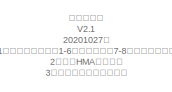
[diagram: root canvas - part 1/2, top left region]
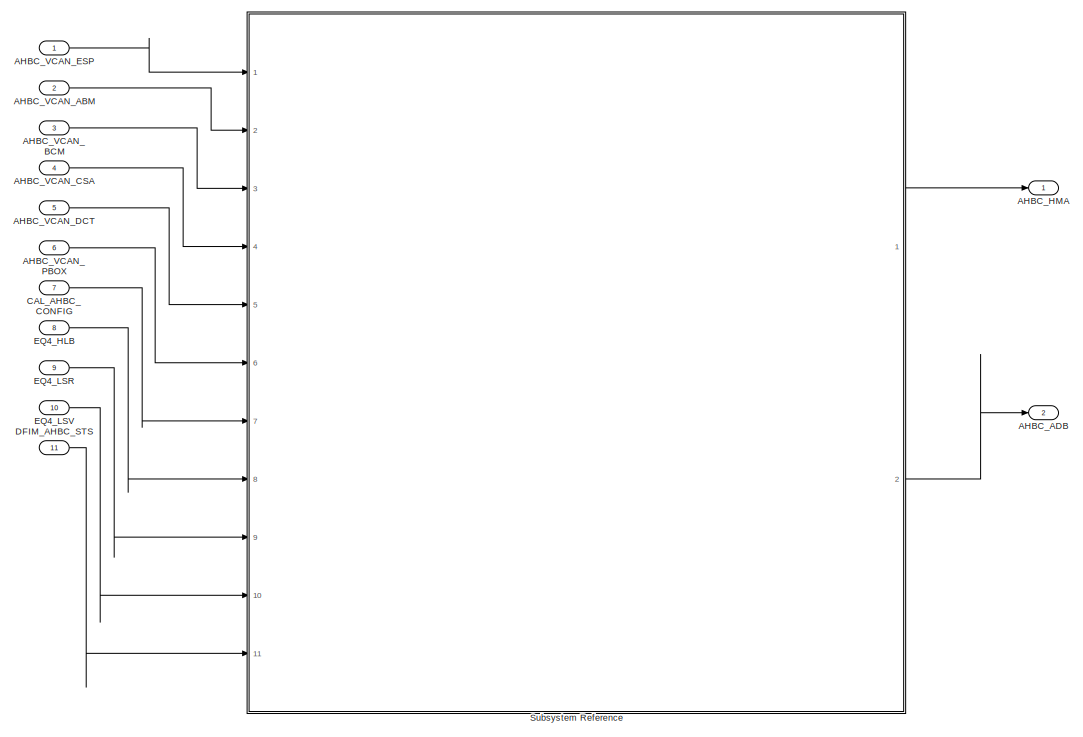
[diagram: root canvas - part 2/2, center side, full height]
MODEL slx_e3b2e9e3b8b3
KIND model
CONFIG AbsTol = auto
CONFIG EnableMultiTasking = off
CONFIG FixedStep = 0.02
CONFIG MaxStep = auto
CONFIG MinStep = auto
CONFIG RelTol = 1e-3
CONFIG SampleTimeConstraint = Unconstrained
CONFIG SolverName = FixedStepDiscrete
CONFIG StartTime = 0.0
CONFIG StopTime = 10.0
BLOCK [Outport] AHBC_ADB
  BusOutputAsStruct = on
  OutDataTypeStr = Bus: AHBC_ADB_BUS
  Port = 2
  PortDimensions = 1
BLOCK [Outport] AHBC_HMA
  BusOutputAsStruct = on
  OutDataTypeStr = Bus: AHBC_HMA_BUS
  PortDimensions = 1
BLOCK [Inport] AHBC_VCAN_ABM
  BusOutputAsStruct = on
  OutDataTypeStr = Bus: VCAN_ABM_MSG_BUS
  Port = 2
  PortDimensions = 1
BLOCK [Inport] AHBC_VCAN_BCM
  BusOutputAsStruct = on
  OutDataTypeStr = Bus: VCAN_BCM_MSG_BUS
  Port = 3
  PortDimensions = 1
BLOCK [Inport] AHBC_VCAN_CSA
  BusOutputAsStruct = on
  OutDataTypeStr = Bus: VCAN_CSA_MSG_BUS
  Port = 4
  PortDimensions = 1
BLOCK [Inport] AHBC_VCAN_DCT
  BusOutputAsStruct = on
  OutDataTypeStr = Bus: VCAN_DCT_MSG_BUS
  Port = 5
  PortDimensions = 1
BLOCK [Inport] AHBC_VCAN_ESP
  BusOutputAsStruct = on
  OutDataTypeStr = Bus: VCAN_ESP_MSG_BUS
  PortDimensions = 1
BLOCK [Inport] AHBC_VCAN_PBOX
  BusOutputAsStruct = on
  OutDataTypeStr = Bus: VCAN_PBOX_MSG_BUS
  Port = 6
  PortDimensions = 1
BLOCK [Inport] CAL_AHBC_CONFIG
  BusOutputAsStruct = on
  OutDataTypeStr = Bus: CAL_AHBC_CONFIG_BUS
  Port = 7
  PortDimensions = 1
BLOCK [Inport] DFIM_AHBC_STS
  BusOutputAsStruct = on
  OutDataTypeStr = Bus: DFIM_AHBC_STS_BUS
  Port = 11
  PortDimensions = 1
BLOCK [Inport] EQ4_HLB
  BusOutputAsStruct = on
  OutDataTypeStr = Bus: EQ4_HLB_BUS
  Port = 8
  PortDimensions = 1
BLOCK [Inport] EQ4_LSR
  BusOutputAsStruct = on
  OutDataTypeStr = Bus: EQ4_LSR_BUS
  Port = 9
  PortDimensions = 1
BLOCK [Inport] EQ4_LSV
  BusOutputAsStruct = on
  OutDataTypeStr = Bus: EQ4_LSV_BUS
  Port = 10
  PortDimensions = 1
BLOCK [SubSystem] Subsystem Reference
  Ports = [11, 2]
  ReferencedSubsystem = PvtSubSys_AHBC
  RequestExecContextInheritance = off
ANNOTATION (root): 变更记录： V2.1 20201027： 1、调换目标类型，1-6是车辆目标，7-8是反射物目标； 2、修改HMA状态机； 3、新增输入输出观测量； V2.2 20201031： 1、新增目标有效性判断逻辑； 2、LightCtrlParameter字典新增两个自定义的BUS V2.3 20201109： 1、新增后雾灯RFogLmpSts__Pbox信号作为抑制条件； 2、修复行驶方向抑制条件BUG； V2.4 20210104 1、修复行驶方向抑制条件BUG； 2、更改Trafficstyle命名为TrafficStyle 20210201 1、匹配4.11DBC接口 210217 新增标定量P_AHBC_TrafficStyle，默认值为1； 210218 修复上电开始CamerSts报fault问题； 210220 优化AmBlight、RoadIllumDetd信号判断逻辑； 2...<+116ch>
LINE AHBC_VCAN_ABM:1 -> Subsystem Reference:2
LINE AHBC_VCAN_BCM:1 -> Subsystem Reference:3
LINE AHBC_VCAN_CSA:1 -> Subsystem Reference:4
LINE AHBC_VCAN_DCT:1 -> Subsystem Reference:5
LINE AHBC_VCAN_ESP:1 -> Subsystem Reference:1
LINE AHBC_VCAN_PBOX:1 -> Subsystem Reference:6
LINE CAL_AHBC_CONFIG:1 -> Subsystem Reference:7
LINE DFIM_AHBC_STS:1 -> Subsystem Reference:11
LINE EQ4_HLB:1 -> Subsystem Reference:8
LINE EQ4_LSR:1 -> Subsystem Reference:9
LINE EQ4_LSV:1 -> Subsystem Reference:10
LINE Subsystem Reference:1 -> AHBC_HMA:1
LINE Subsystem Reference:2 -> AHBC_ADB:1
